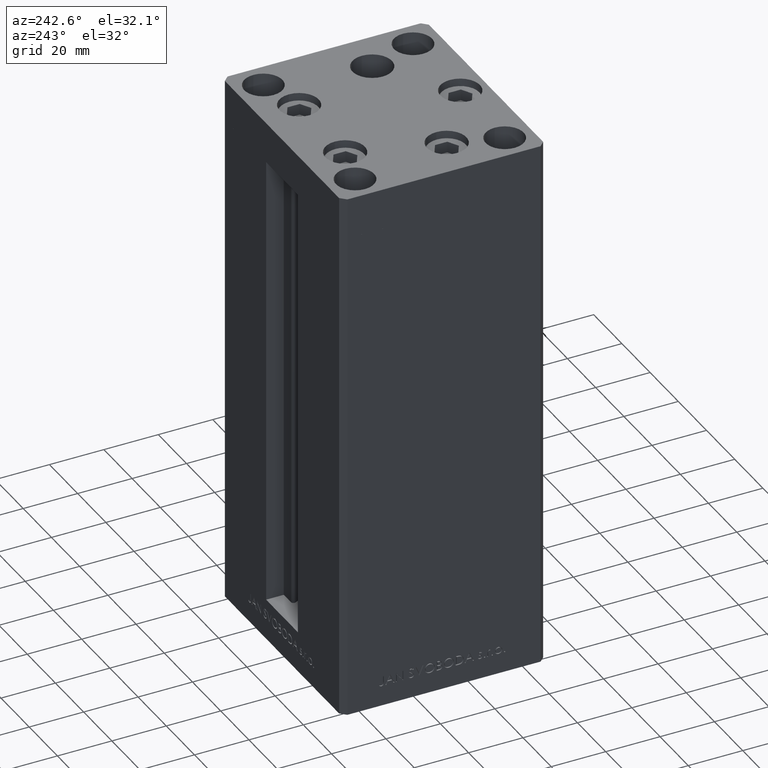
[diagram: clean part render]
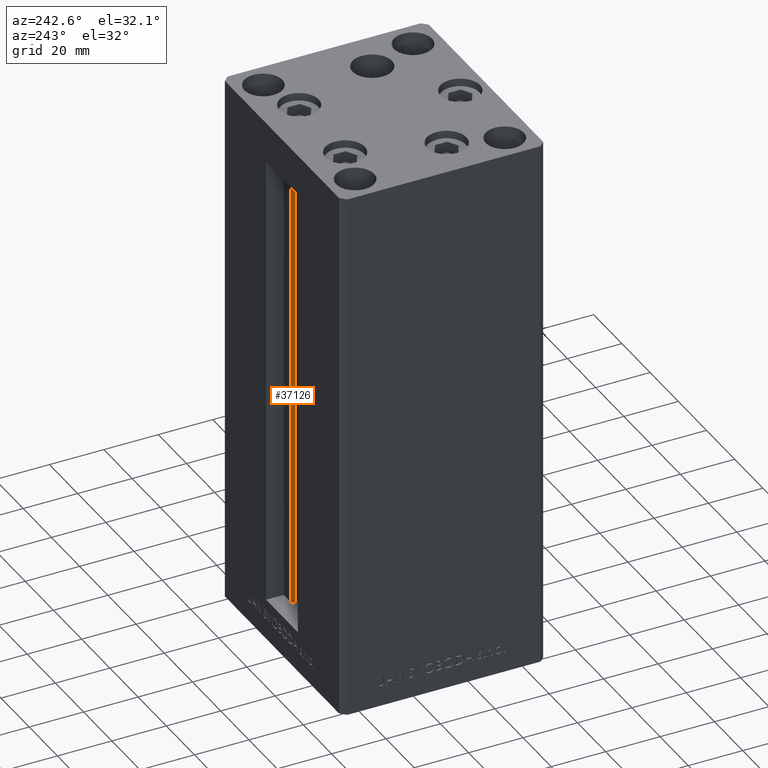
[diagram: same view with one face highlighted and labeled with its STEP entity id]
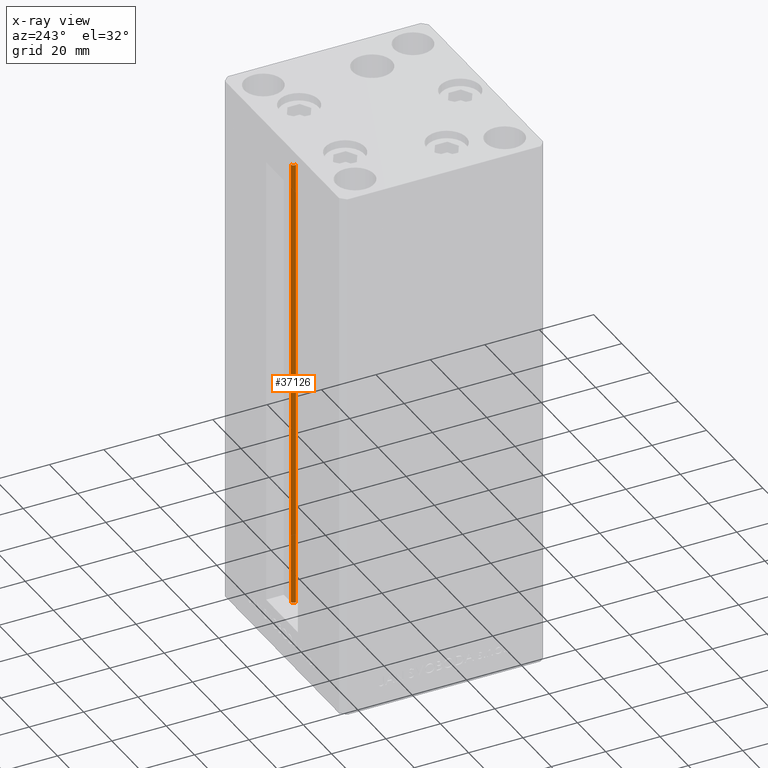
[diagram: x-ray of the same camera — body ghosted, the highlighted face saturated]
A machine part, auxiliary view. The second image highlights one B-rep face of the part: STEP entity #37126.
The next image is the same camera in x-ray: the body ghosted, the highlighted face saturated — about 0% of this face is hidden behind the body in this view.
In plain terms, the highlighted cylindrical surface (edge-blend (fillet) strip) has radius 0.9333 mm, axis along (0, 0, 1).
Its self-contained STEP definition (entity closure, byte-faithful):
#6698 = VERTEX_POINT ( 'NONE', #30129 ) ;
#10574 = CARTESIAN_POINT ( 'NONE',  ( 5.375042956467943611, 29.59999999999899245, 0.000000000000000000 ) ) ;
#10819 = DIRECTION ( 'NONE',  ( -0.000000000000000000, -0.000000000000000000, 1.000000000000000000 ) ) ;
#11324 = EDGE_CURVE ( 'NONE', #32016, #44513, #15741, .T. ) ;
#11485 = DIRECTION ( 'NONE',  ( 1.000000000000000000, 0.000000000000000000, 0.000000000000000000 ) ) ;
#13850 = CIRCLE ( 'NONE', #15416, 0.9333333333340015914 ) ;
#15123 = FACE_OUTER_BOUND ( 'NONE', #18868, .T. ) ;
#15416 = AXIS2_PLACEMENT_3D ( 'NONE', #37726, #26826, #11485 ) ;
#15741 = LINE ( 'NONE', #19455, #16143 ) ;
#15908 = ORIENTED_EDGE ( 'NONE', *, *, #11324, .F. ) ;
#16143 = VECTOR ( 'NONE', #30822, 1000.000000000000000 ) ;
#16473 = EDGE_CURVE ( 'NONE', #6698, #44513, #13850, .T. ) ;
#17803 = CARTESIAN_POINT ( 'NONE',  ( 5.375042956467943611, 29.59999999999899245, 0.000000000000000000 ) ) ;
#18366 = DIRECTION ( 'NONE',  ( -0.000000000000000000, -0.000000000000000000, 1.000000000000000000 ) ) ;
#18868 = EDGE_LOOP ( 'NONE', ( #15908, #29607, #37509, #19139 ) ) ;
#18972 = DIRECTION ( 'NONE',  ( -0.000000000000000000, -0.000000000000000000, -1.000000000000000000 ) ) ;
#19139 = ORIENTED_EDGE ( 'NONE', *, *, #16473, .T. ) ;
#19455 = CARTESIAN_POINT ( 'NONE',  ( 6.183333333333999704, 30.99999999999999289, 0.000000000000000000 ) ) ;
#20676 = EDGE_CURVE ( 'NONE', #42319, #6698, #44470, .T. ) ;
#26267 = CYLINDRICAL_SURFACE ( 'NONE', #41468, 0.9333333333340015914 ) ;
#26826 = DIRECTION ( 'NONE',  ( 0.000000000000000000, 0.000000000000000000, -1.000000000000000000 ) ) ;
#29573 = CARTESIAN_POINT ( 'NONE',  ( 6.183333333333999704, 30.99999999999999289, 0.000000000000000000 ) ) ;
#29607 = ORIENTED_EDGE ( 'NONE', *, *, #44944, .F. ) ;
#30129 = CARTESIAN_POINT ( 'NONE',  ( 5.375042956467944499, 29.59999999999898890, 168.5000000000000000 ) ) ;
#30610 = AXIS2_PLACEMENT_3D ( 'NONE', #40305, #18972, #41496 ) ;
#30822 = DIRECTION ( 'NONE',  ( -0.000000000000000000, -0.000000000000000000, 1.000000000000000000 ) ) ;
#32016 = VERTEX_POINT ( 'NONE', #29573 ) ;
#32176 = VECTOR ( 'NONE', #10819, 1000.000000000000000 ) ;
#34669 = CARTESIAN_POINT ( 'NONE',  ( 6.183333333333999704, 30.99999999999999289, 168.5000000000000000 ) ) ;
#35364 = CIRCLE ( 'NONE', #30610, 0.9333333333340015914 ) ;
#37126 = ADVANCED_FACE ( 'NONE', ( #15123 ), #26267, .T. ) ;
#37509 = ORIENTED_EDGE ( 'NONE', *, *, #20676, .T. ) ;
#37726 = CARTESIAN_POINT ( 'NONE',  ( 6.183333333333999704, 30.06666666666599141, 168.5000000000000000 ) ) ;
#40305 = CARTESIAN_POINT ( 'NONE',  ( 6.183333333333999704, 30.06666666666599141, 0.000000000000000000 ) ) ;
#41468 = AXIS2_PLACEMENT_3D ( 'NONE', #44837, #18366, #41609 ) ;
#41496 = DIRECTION ( 'NONE',  ( 1.000000000000000000, 0.000000000000000000, 0.000000000000000000 ) ) ;
#41609 = DIRECTION ( 'NONE',  ( 1.000000000000000000, 0.000000000000000000, 0.000000000000000000 ) ) ;
#42319 = VERTEX_POINT ( 'NONE', #17803 ) ;
#44470 = LINE ( 'NONE', #10574, #32176 ) ;
#44513 = VERTEX_POINT ( 'NONE', #34669 ) ;
#44837 = CARTESIAN_POINT ( 'NONE',  ( 6.183333333333999704, 30.06666666666599141, 0.000000000000000000 ) ) ;
#44944 = EDGE_CURVE ( 'NONE', #42319, #32016, #35364, .T. ) ;